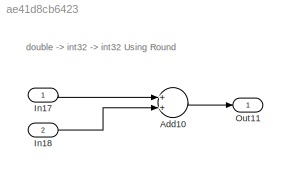
MODEL slx_ae41d8cb6423
KIND model
CONFIG AbsTol = auto
CONFIG EnableMultiTasking = off
CONFIG FixedStep = 0.200000
CONFIG MaxStep = auto
CONFIG MinStep = auto
CONFIG RelTol = 1e-3
CONFIG SampleTimeConstraint = Unconstrained
CONFIG Solver = FixedStepDiscrete
CONFIG SolverName = FixedStepDiscrete
CONFIG StartTime = 0.0
CONFIG StopTime = 10.0
BLOCK [Sum] Add10
  AccumDataTypeStr = int32
  InputSameDT = off
  OutDataTypeStr = int32
  Ports = [2, 1]
  RndMeth = Round
  SaturateOnIntegerOverflow = off
BLOCK [Inport] In17
  IconDisplay = Port number
  OutDataTypeStr = double
BLOCK [Inport] In18
  IconDisplay = Port number
  OutDataTypeStr = int32
  Port = 2
BLOCK [Outport] Out11
  IconDisplay = Port number
ANNOTATION (root): double -> int32 -> int32 Using Round
LINE Add10:1 -> Out11:1
LINE In17:1 -> Add10:1
LINE In18:1 -> Add10:2
